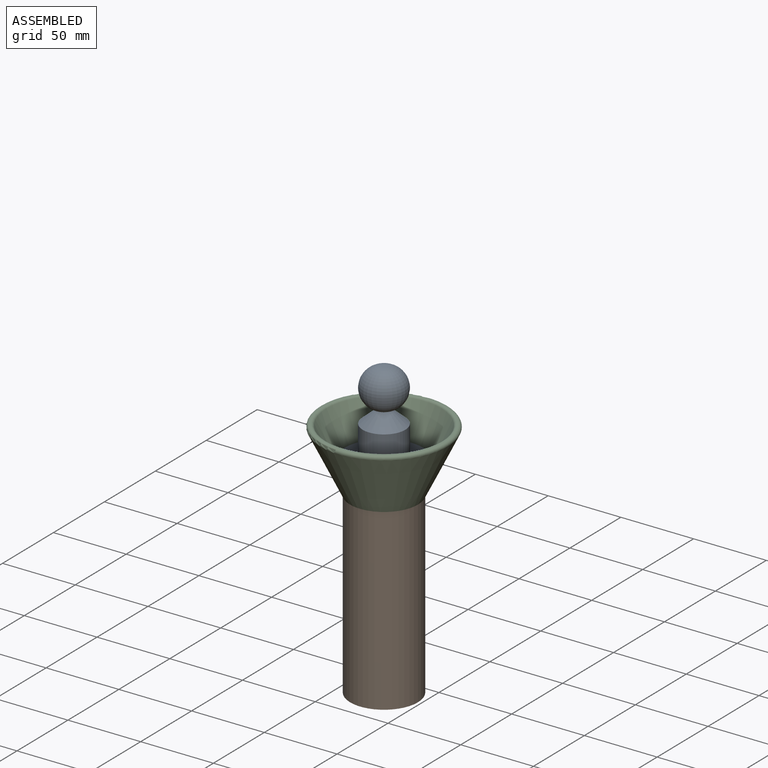
[diagram: assembled view]
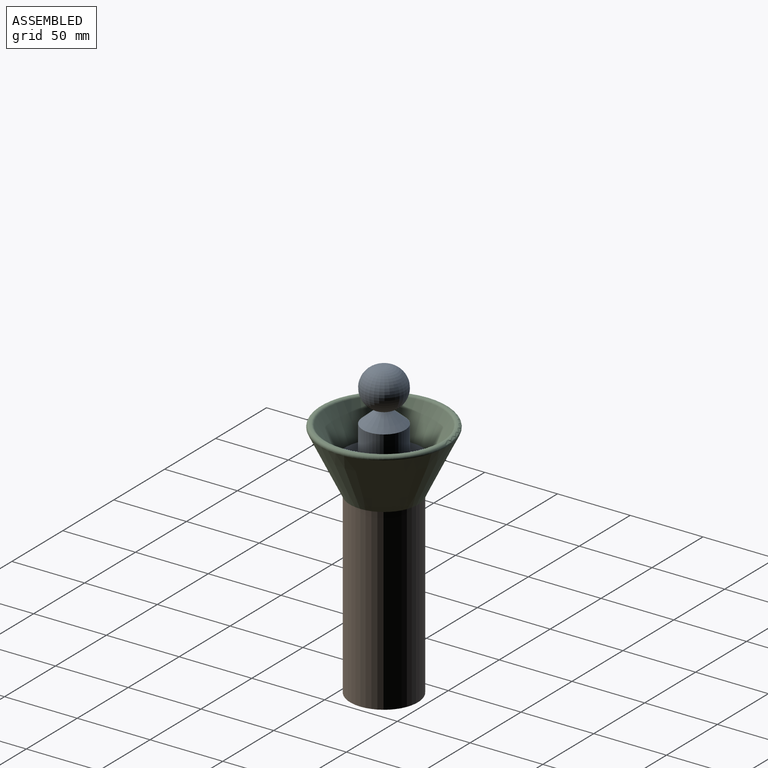
[diagram: assembled view, second angle]
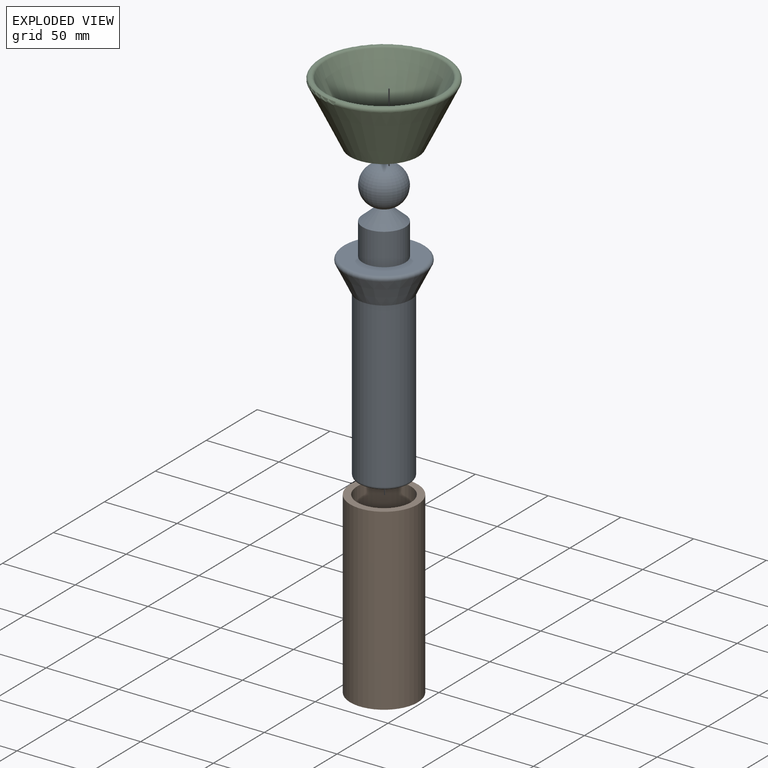
[diagram: exploded view]
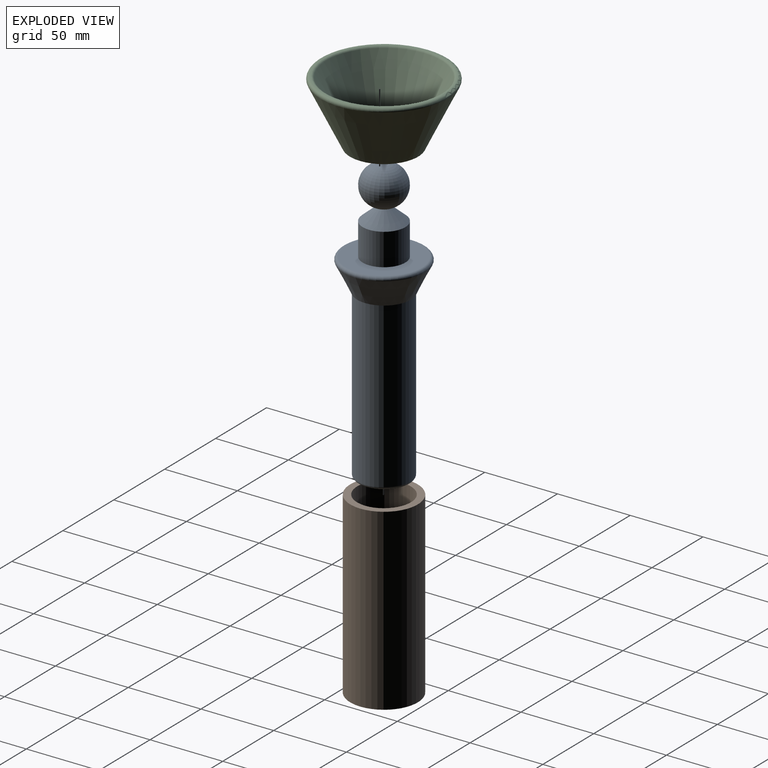
[diagram: exploded view, second angle]
ASSEMBLY  parts=3 mates=2
PART A: 10 faces, bbox 60.7x60.7x194.7 mm
  f0: torus R=1.29mm, axis (0,0,1), area 2532.6mm2, adj f1
  f1: cone r=14.62mm half-angle=49deg, axis (0,0,-1), area 824.4mm2, adj f0,f2
  f2: cylinder r=14.62mm len=29.25mm, axis (0,0,1), area 2022.6mm2, adj f1,f3
  f3: plane 52.1x52.1mm, normal (0,0,1), area 1459.5mm2, adj f2,f4
  f4: torus R=26.05mm, axis (0,0,1), area 699mm2, adj f3,f5
  f5: cone r=27.84mm half-angle=26deg, axis (0,0,1), area 3100.2mm2, adj f4,f6
  f6: plane 37x37mm, normal (0,0,-1), area 46mm2, adj f5,f7
  f7: cylinder r=18.1mm len=113mm, axis (0,0,1), area 12851mm2, adj f6,f8
  f8: torus R=16.1mm, axis (0,0,1), area 342.9mm2, adj f7,f9
  f9: plane 32.2x32.2mm, normal (0,0,-1), area 814.3mm2, adj f8
PART B: 4 faces, bbox 46.5x46.5x123 mm
  f0: cylinder r=18.5mm len=123mm, axis (0,0,-1), area 14297.4mm2, adj f2,f3
  f1: cylinder r=23.25mm len=123mm, axis (0,0,-1), area 17968.3mm2, adj f2,f3
  f2: plane 46.5x46.5mm, normal (0,0,1), area 623mm2, adj f0,f1
  f3: plane 46.5x46.5mm, normal (0,0,-1), area 623mm2, adj f0,f1
PART C: 6 faces, bbox 94.8x94.8x44 mm
  f0: plane 47x47mm, normal (0,0,-1), area 659.7mm2, adj f1,f3
  f1: cone r=40mm half-angle=26deg, axis (0,0,1), area 8692.1mm2, adj f0,f4
  f2: plane 83.6x83.6mm, normal (0,0,1), area 143.1mm2, adj f4,f5
  f3: cone r=45mm half-angle=26deg, axis (0,0,1), area 9651.6mm2, adj f0,f5
  f4: torus R=41.25mm, axis (0,0,-1), area 564.6mm2, adj f1,f2
  f5: torus R=41.8mm, axis (0,0,-1), area 1099.8mm2, adj f2,f3
PLACE A t=(-71.03,-23.87,88.71)mm
PLACE B t=(-71.03,-23.87,-34.29)mm fixed
PLACE C t=(-71.03,-23.87,88.71)mm
MATE slider A.f1 <-> B.f0  axis (0,0,1) through (-71.03,-23.87,88.71)mm
MATE fastened B.f0 <-> C.f1  axis (0,0,-1) through (-71.03,-23.87,88.71)mm
